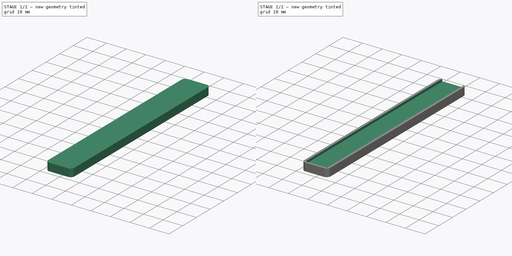
[diagram: build sequence overview — one tinted view per stage of 2, left to right]
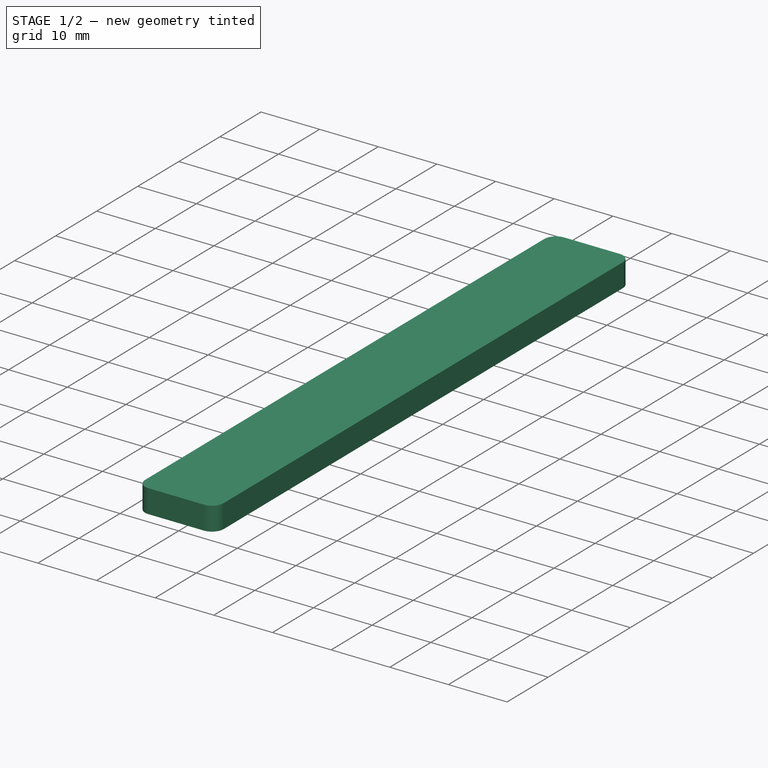
[diagram: stage 1 of 2 — iso view after this stage's code; geometry added in this stage tinted green]
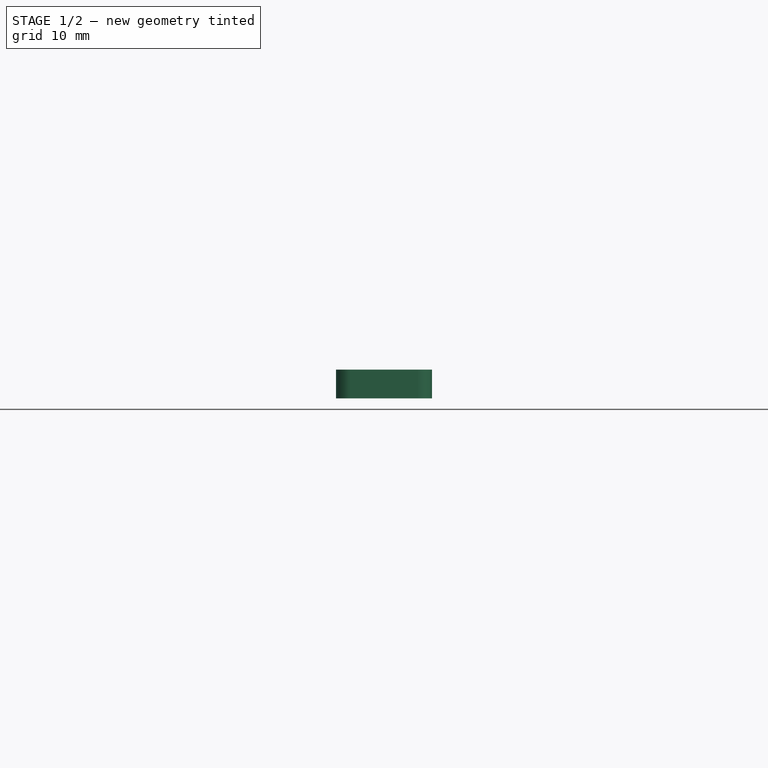
[diagram: stage 1 of 2 — front view after this stage's code; geometry added in this stage tinted green]
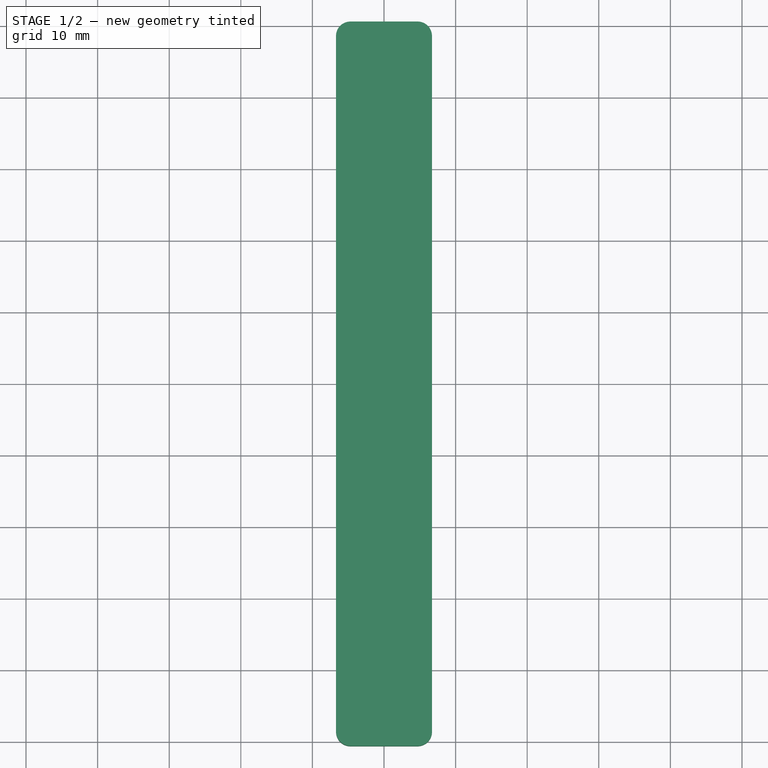
[diagram: stage 1 of 2 — top view after this stage's code; geometry added in this stage tinted green]
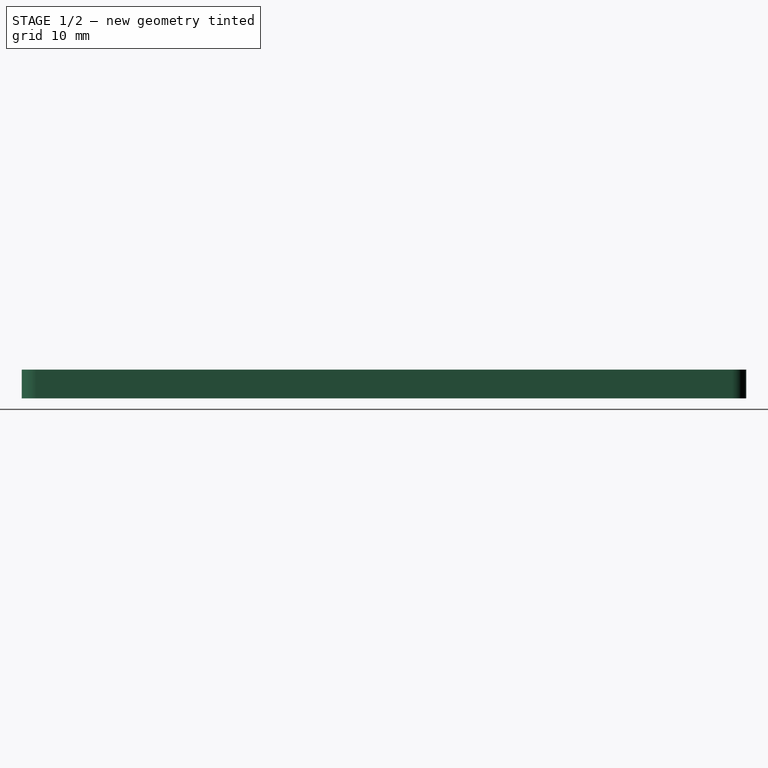
[diagram: stage 1 of 2 — right view after this stage's code; geometry added in this stage tinted green]
FCSTD DOCUMENT  (FreeCAD 1.0R39319 (Git))
Label: CableTieCutTool
License: All rights reserved
LicenseURL: http://en.wikipedia.org/wiki/All_rights_reserved
objects: Sketcher::SketchObject×2, Spreadsheet::Sheet×1, PartDesign::Pad×1, PartDesign::Pocket×1, PartDesign::Body×1
note: 11 computed .brp shape members not serialized (recipe doc carries the construction recipe); baked Part::Feature solids carry a one-line shape summary decoded from their .brp

FEATURE [Spreadsheet::Sheet] Spreadsheet
  cells = B2='Length; C2(Length)==100 mm; B3='Width; C3(Width)==11 mm; B4='Wall; C4(Wall)==1.2 mm
FEATURE [Sketcher::SketchObject] Sketch  label="Base"
  ArcFitTolerance = 0
  AttachmentSupport = -> [XY_Plane001]
  FullyConstrained = true
  MakeInternals = false
  MapMode = 5
  expr: .Constraints.Length = Spreadsheet.Length + Spreadsheet.Wall
  expr: .Constraints.Width = Spreadsheet.Width + Spreadsheet.Wall * 2
  sketch-geometry (8):
    g0: LineSegment StartX=-4.7 StartY=50.6 StartZ=0 EndX=4.7 EndY=50.6 EndZ=0
    g1: LineSegment StartX=6.7 StartY=48.6 StartZ=0 EndX=6.7 EndY=-48.6 EndZ=0
    g2: LineSegment StartX=4.7 StartY=-50.6 StartZ=0 EndX=-4.7 EndY=-50.6 EndZ=0
    g3: LineSegment StartX=-6.7 StartY=-48.6 StartZ=0 EndX=-6.7 EndY=48.6 EndZ=0
    g4: ArcOfCircle CenterX=-4.7 CenterY=48.6 CenterZ=0 NormalX=0 NormalY=0 NormalZ=1 AngleXU=0 Radius=2 StartAngle=1.5708 EndAngle=3.14159
    g5: ArcOfCircle CenterX=4.7 CenterY=48.6 CenterZ=0 NormalX=0 NormalY=0 NormalZ=1 AngleXU=0 Radius=2 StartAngle=1.045e-13 EndAngle=1.5708
    g6: ArcOfCircle CenterX=4.7 CenterY=-48.6 CenterZ=0 NormalX=0 NormalY=0 NormalZ=1 AngleXU=0 Radius=2 StartAngle=4.71239 EndAngle=6.28319
    g7: ArcOfCircle CenterX=-4.7 CenterY=-48.6 CenterZ=0 NormalX=0 NormalY=0 NormalZ=1 AngleXU=0 Radius=2 StartAngle=3.14159 EndAngle=4.71239
  constraints (18):
    c: Horizontal(g0)
    c: Horizontal(g2)
    c: Vertical(g1)
    c: Tangent(g0,g4) = 1.5708
    c: Tangent(g3,g4) = 1.5708
    c: Tangent(g0,g5) = 1.5708
    c: Tangent(g1,g5) = 1.5708
    c: Tangent(g1,g6) = 1.5708
    c: Tangent(g2,g6) = 1.5708
    c: Tangent(g2,g7) = 1.5708
    c: Tangent(g3,g7) = 1.5708
    c: Equal(g4,g5)
    c: Equal(g5,g6)
    c: Radius(g4) = 2
    c: DistanceX(g3,g1) = 13.4  'Width'
    c: DistanceY(g2,g0) = 101.2  'Length'
    c: Symmetric(g3,g1,g-2)
    c: Symmetric(g0,g2,g-1)
FEATURE [PartDesign::Pad] Pad  label="Base_"
  AllowMultiFace = false
  Direction = (0,0,1)
  Length = 4
  Length2 = 100
  Profile = -> Sketch
  Suppressed = false
  Type = 0
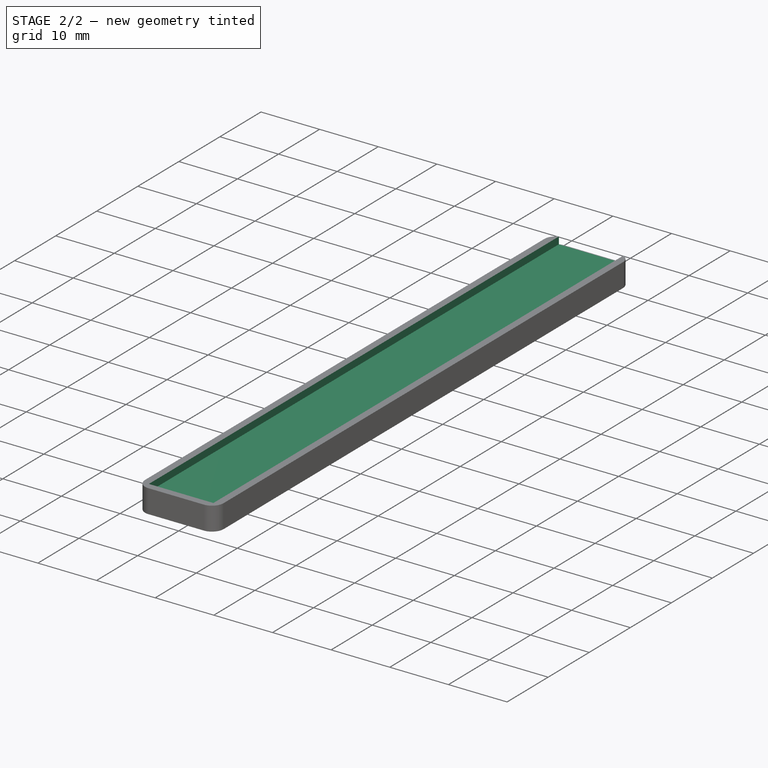
[diagram: stage 2 of 2 — iso view after this stage's code; geometry added in this stage tinted green]
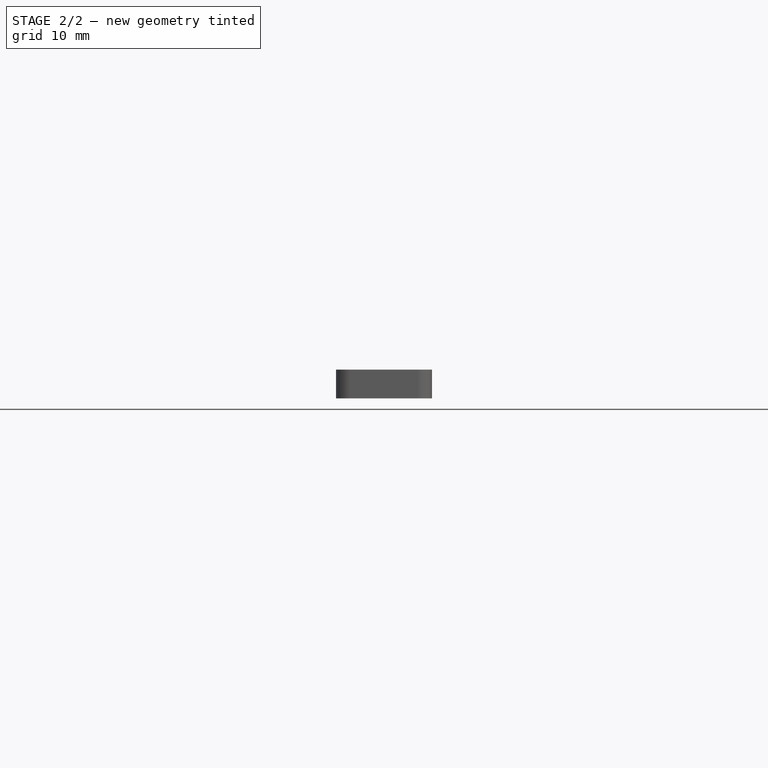
[diagram: stage 2 of 2 — front view after this stage's code; geometry added in this stage tinted green]
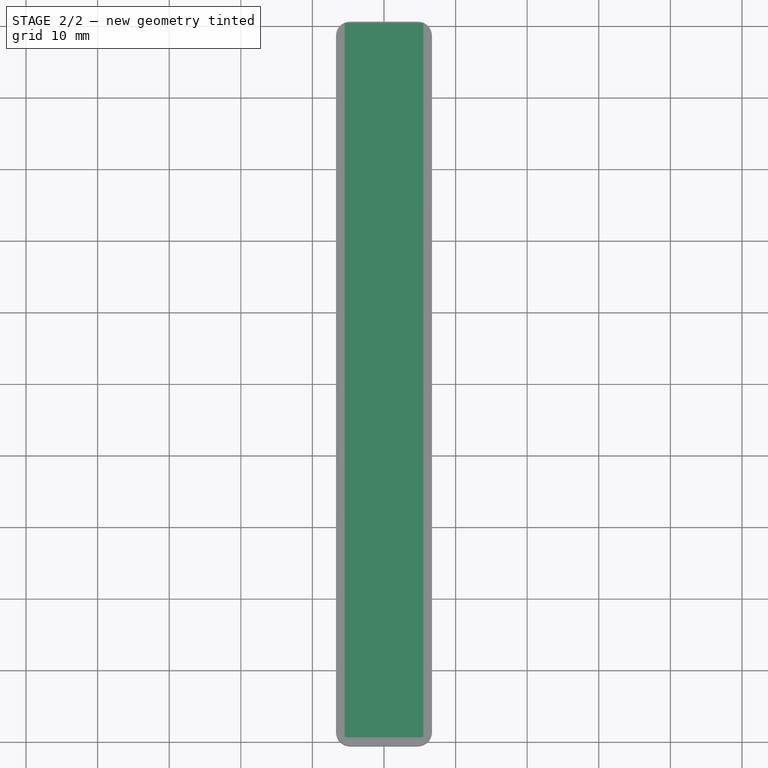
[diagram: stage 2 of 2 — top view after this stage's code; geometry added in this stage tinted green]
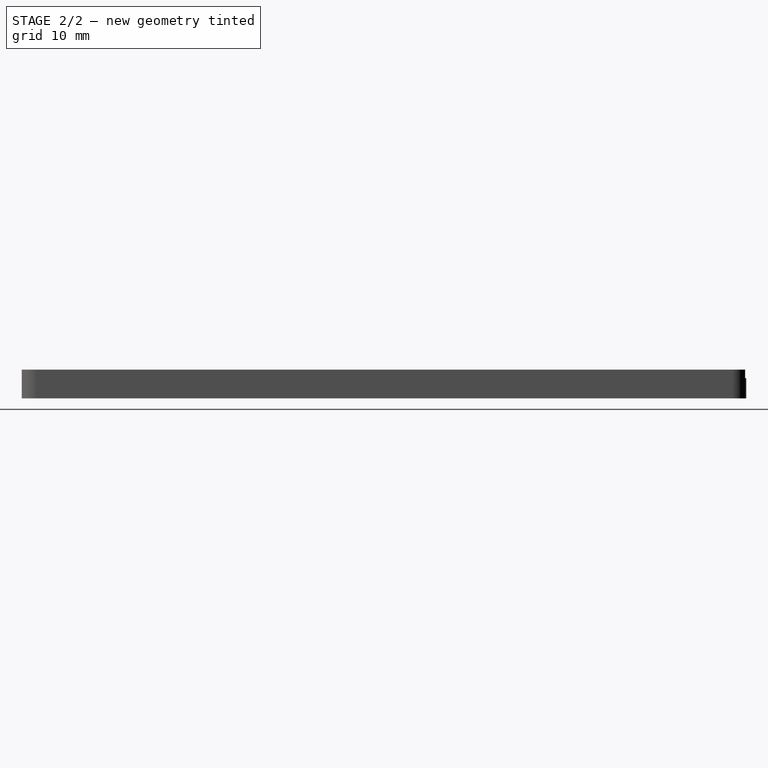
[diagram: stage 2 of 2 — right view after this stage's code; geometry added in this stage tinted green]
FEATURE [Sketcher::SketchObject] Sketch001
  ArcFitTolerance = 0
  AttachmentOffset = pos=(0,0,4) rot=(0,0,1;0rad)
  AttachmentSupport = -> [XY_Plane001]
  FullyConstrained = true
  MakeInternals = false
  MapMode = 5
  Placement = pos=(0,0,4) rot=(0,0,1;0rad)
  expr: .AttachmentOffset.Base.z = <<Base_>>.Length
  expr: Constraints[14] = Spreadsheet.Wall
  expr: Constraints[16] = Sketch.Constraints.Length
  expr: Constraints[17] = Spreadsheet.Width
  sketch-geometry (7):
    g0: LineSegment StartX=5.5 StartY=-49.4 StartZ=0 EndX=-5.5 EndY=-49.4 EndZ=0
    g1: LineSegment StartX=-5.5 StartY=-49.4 StartZ=0 EndX=-5.5 EndY=50.6 EndZ=0
    g2: LineSegment StartX=-5.5 StartY=50.6 StartZ=0 EndX=5.5 EndY=50.6 EndZ=0
    g3: LineSegment StartX=5.5 StartY=50.6 StartZ=0 EndX=5.5 EndY=-49.4 EndZ=0
    g4: LineSegment [constr] StartX=-5.5 StartY=-49.4 StartZ=0 EndX=-5.5 EndY=-50.6 EndZ=0
    g5: LineSegment [constr] StartX=-5.5 StartY=-50.6 StartZ=0 EndX=5.5 EndY=-50.6 EndZ=0
    g6: LineSegment [constr] StartX=5.5 StartY=-50.6 StartZ=0 EndX=5.5 EndY=-49.4 EndZ=0
  constraints (18):
    c: Coincident(g0,g1)
    c: Coincident(g1,g2)
    c: Coincident(g2,g3)
    c: Coincident(g3,g0)
    c: Horizontal(g0)
    c: Vertical(g1)
    c: Vertical(g3)
    c: Symmetric(g1,g2,g-2)
    c: Coincident(g0,g4)
    c: Coincident(g4,g5)
    c: Horizontal(g5)
    c: Coincident(g5,g6)
    c: Coincident(g6,g0)
    c: Vertical(g6)
    c: DistanceY(g4,g4) = 1.2
    c: Symmetric(g4,g1,g-1)
    c: DistanceY(g4,g1) = 101.2
    c: DistanceX(g2,g2) = 11
FEATURE [PartDesign::Pocket] Pocket
  AllowMultiFace = false
  BaseFeature = -> Pad
  Direction = (0,0,-1)
  Length = 1.2
  Length2 = 100
  Profile = -> Sketch001
  Suppressed = false
  Type = 0
FEATURE [PartDesign::Body] Body
  AllowCompound = false
  Group = -> [Sketch,Pad,Sketch001,Pocket]
  Origin = -> Origin001
  Tip = -> Pocket
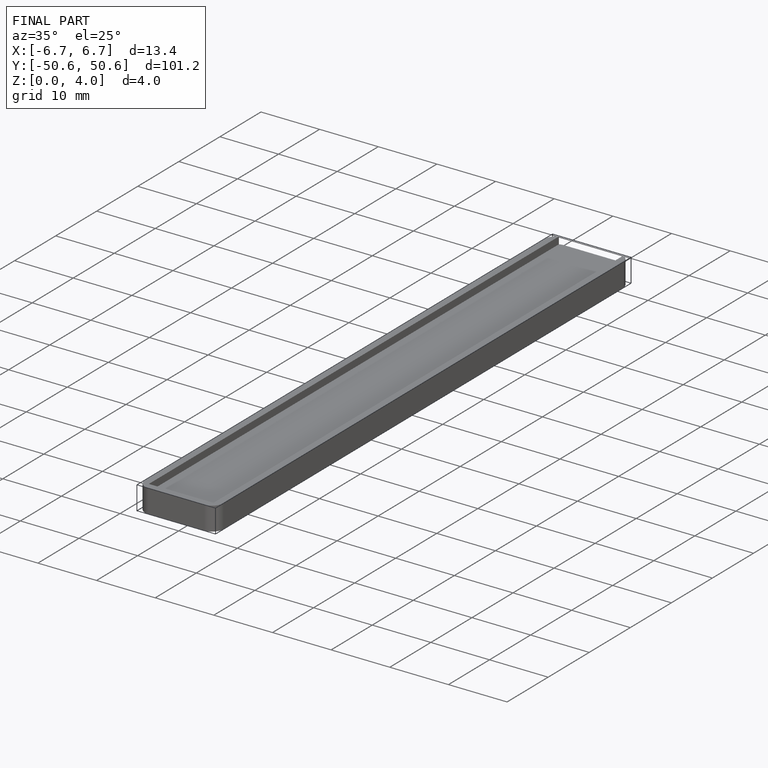
[diagram: finished part — iso view with bounding-box wireframe]
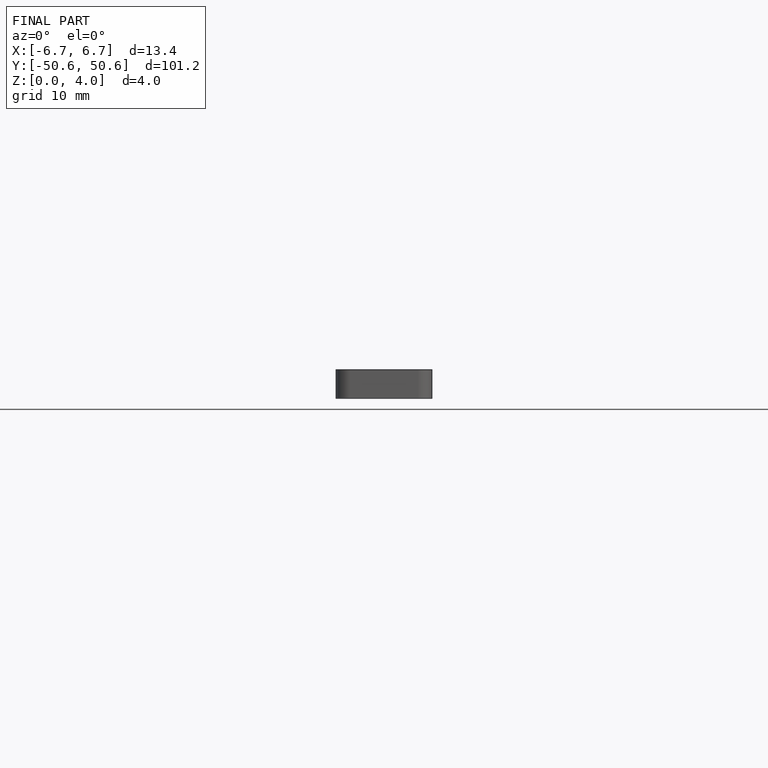
[diagram: finished part — front view with bounding-box wireframe]
